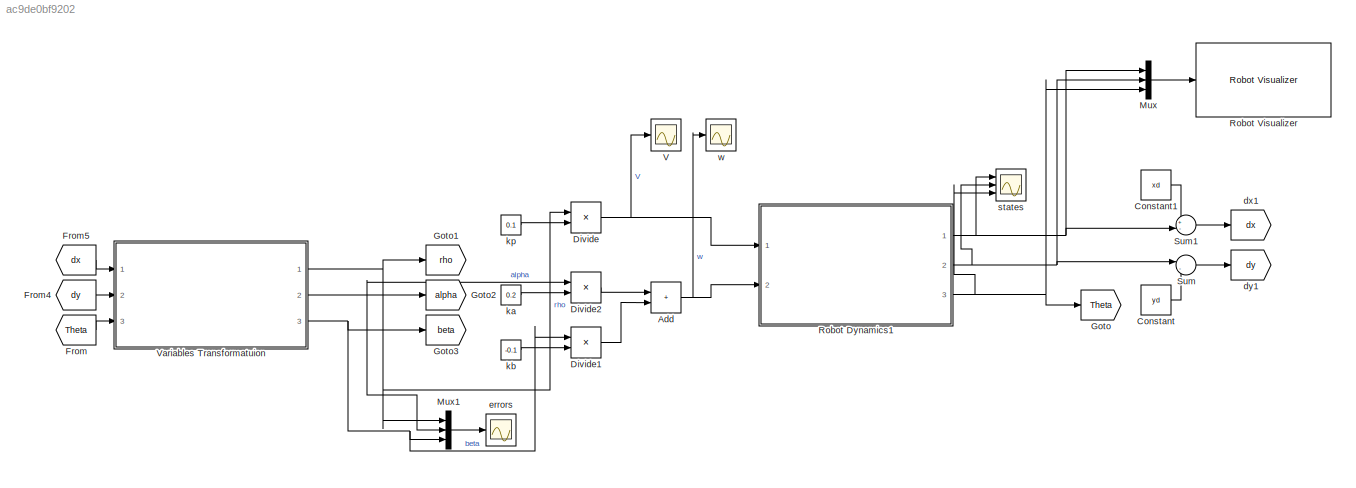
MODEL slx_ac9de0bf9202
KIND model
CONFIG AbsTol = auto
CONFIG EnableMultiTasking = off
CONFIG FixedStep = auto
CONFIG MaxStep = auto
CONFIG MinStep = auto
CONFIG RelTol = 1e-3
CONFIG SampleTimeConstraint = Unconstrained
CONFIG SolverName = VariableStepAuto
CONFIG StartTime = 0.0
CONFIG StopTime = 100
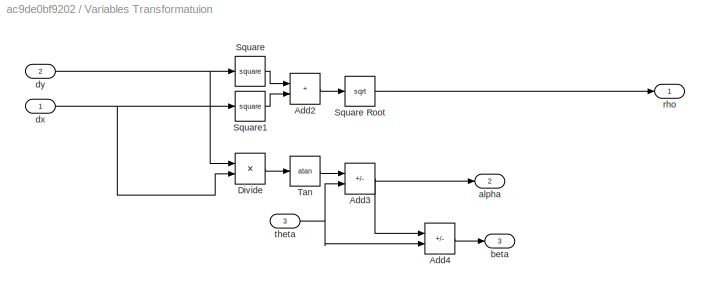
BLOCK [SubSystem]  Variables Transformatuion
  Ports = [3, 3]
  RequestExecContextInheritance = off
BLOCK [Sum]  Variables Transformatuion/Add2
  IconShape = rectangular
  Ports = [2, 1]
BLOCK [Sum]  Variables Transformatuion/Add3
  IconShape = rectangular
  Inputs = +-
  Ports = [2, 1]
BLOCK [Sum]  Variables Transformatuion/Add4
  IconShape = rectangular
  Inputs = --
  Ports = [2, 1]
BLOCK [Product]  Variables Transformatuion/Divide
  Inputs = */
  Ports = [2, 1]
BLOCK [Math]  Variables Transformatuion/Square
  Operator = square
  Ports = [1, 1]
BLOCK [Sqrt]  Variables Transformatuion/Square Root
BLOCK [Math]  Variables Transformatuion/Square1
  Operator = square
  Ports = [1, 1]
BLOCK [Trigonometry]  Variables Transformatuion/Tan
  Operator = atan
  Ports = [1, 1]
BLOCK [Outport]  Variables Transformatuion/alpha
  Port = 2
BLOCK [Outport]  Variables Transformatuion/beta
  Port = 3
BLOCK [Inport]  Variables Transformatuion/dx
BLOCK [Inport]  Variables Transformatuion/dy
  Port = 2
BLOCK [Outport]  Variables Transformatuion/rho
BLOCK [Inport]  Variables Transformatuion/theta
  Port = 3
BLOCK [Sum] Add
  IconShape = rectangular
  Ports = [2, 1]
BLOCK [Constant] Constant
  Value = yd
BLOCK [Constant] Constant1
  Value = xd
BLOCK [Product] Divide
  Inputs = **
  Ports = [2, 1]
BLOCK [Product] Divide1
  Inputs = **
  Ports = [2, 1]
BLOCK [Product] Divide2
  Inputs = **
  Ports = [2, 1]
BLOCK [From] From
  GotoTag = Theta
BLOCK [From] From4
  GotoTag = dy
BLOCK [From] From5
  GotoTag = dx
BLOCK [Goto] Goto
  GotoTag = Theta
BLOCK [Goto] Goto1
  GotoTag = rho
BLOCK [Goto] Goto2
  GotoTag = alpha
BLOCK [Goto] Goto3
  GotoTag = beta
BLOCK [Mux] Mux
  DisplayOption = bar
  Inputs = 3
  Ports = [3, 1]
BLOCK [Mux] Mux1
  DisplayOption = bar
  Inputs = 3
  Ports = [3, 1]
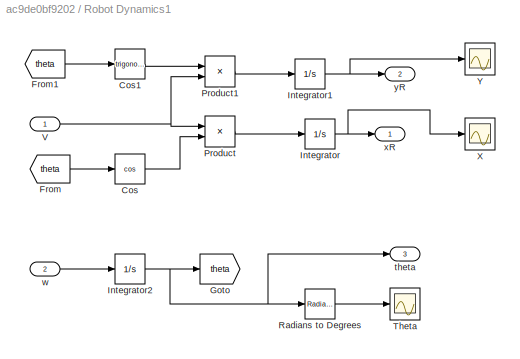
BLOCK [SubSystem] Robot Dynamics1
  Ports = [2, 3]
  RequestExecContextInheritance = off
BLOCK [Trigonometry] Robot Dynamics1/Cos
  Operator = cos
  Ports = [1, 1]
BLOCK [Trigonometry] Robot Dynamics1/Cos1
  Ports = [1, 1]
BLOCK [From] Robot Dynamics1/From
  GotoTag = theta
BLOCK [From] Robot Dynamics1/From1
  GotoTag = theta
BLOCK [Goto] Robot Dynamics1/Goto
  GotoTag = theta
BLOCK [Integrator] Robot Dynamics1/Integrator
  InitialCondition = x0
  Ports = [1, 1]
BLOCK [Integrator] Robot Dynamics1/Integrator1
  InitialCondition = y0
  Ports = [1, 1]
BLOCK [Integrator] Robot Dynamics1/Integrator2
  InitialCondition = theta0
  Ports = [1, 1]
BLOCK [Product] Robot Dynamics1/Product
  Ports = [2, 1]
BLOCK [Product] Robot Dynamics1/Product1
  Ports = [2, 1]
BLOCK [Reference] Robot Dynamics1/Radians to Degrees  REF=simulink_extras/Transformations/Radians
to Degrees
  Ports = [1, 1]
  SourceBlock = simulink_extras/Transformations/Radians\nto Degrees
  SourceProductBaseCode = SL
  SourceType = RadiansToDegrees
BLOCK [Scope] Robot Dynamics1/Theta
  Floating = off
  NumInputPorts = 1
  Ports = [1]
  ScopeSpecificationString = Simulink.scopes.TimeScopeBlockCfg('CurrentConfiguration', extmgr.ConfigurationSet(extmgr.Configuration('Core','General UI',true),extmgr.Configuration('Core','Source UI',true),extmgr.Configuration('Sources','WiredSimulink',true,'DataLoggingVariableName','ScopeData1'),extmgr.Configuration('Visuals','Time Domain',true,'SerializedDisplays',{struct('MinYLimReal','-143.23945','MaxYLimReal','1289.15504',...<+1547ch>
BLOCK [Inport] Robot Dynamics1/V
BLOCK [Scope] Robot Dynamics1/X
  Floating = off
  NumInputPorts = 1
  Ports = [1]
  ScopeSpecificationString = Simulink.scopes.TimeScopeBlockCfg('CurrentConfiguration', extmgr.ConfigurationSet(extmgr.Configuration('Core','General UI',true),extmgr.Configuration('Core','Source UI',true),extmgr.Configuration('Sources','WiredSimulink',true,'DataLoggingVariableName','ScopeData2'),extmgr.Configuration('Visuals','Time Domain',true,'SerializedDisplays',{struct('MinYLimReal','-3.12449','MaxYLimReal','3.12046','YLab...<+1427ch>
BLOCK [Scope] Robot Dynamics1/Y
  Floating = off
  NumInputPorts = 1
  Ports = [1]
  ScopeSpecificationString = Simulink.scopes.TimeScopeBlockCfg('CurrentConfiguration', extmgr.ConfigurationSet(extmgr.Configuration('Core','General UI',true),extmgr.Configuration('Core','Source UI',true),extmgr.Configuration('Sources','WiredSimulink',true),extmgr.Configuration('Visuals','Time Domain',true,'SerializedDisplays',{struct('MinYLimReal','-0.62488','MaxYLimReal','5.62393','YLabelReal','','MinYLimMag','0.00000','MaxY...<+1364ch>
BLOCK [Outport] Robot Dynamics1/theta
  Port = 3
BLOCK [Inport] Robot Dynamics1/w
  Port = 2
BLOCK [Outport] Robot Dynamics1/xR
BLOCK [Outport] Robot Dynamics1/yR
  Port = 2
BLOCK [Reference] Robot Visualizer  REF=mobileRoboticsLib/Environments/Robot Visualizer
  Ports = [1]
  SourceBlock = mobileRoboticsLib/Environments/Robot Visualizer
  SourceProductName = Mobile Robotics Simulation Toolbox
  SourceType = Visualizer2D
BLOCK [Sum] Sum
  Inputs = |-+
  Ports = [2, 1]
BLOCK [Sum] Sum1
  Inputs = +-|
  Ports = [2, 1]
BLOCK [Scope] V
  Floating = off
  NumInputPorts = 1
  Ports = [1]
  ScopeSpecificationString = Simulink.scopes.TimeScopeBlockCfg('CurrentConfiguration', extmgr.ConfigurationSet(extmgr.Configuration('Core','General UI',true),extmgr.Configuration('Core','Source UI',true),extmgr.Configuration('Sources','WiredSimulink',true,'DataLoggingVariableName','ScopeData1'),extmgr.Configuration('Visuals','Time Domain',true,'SerializedDisplays',{struct('MinYLimReal','-0.27938','MaxYLimReal','2.51556','YLab...<+1416ch>
BLOCK [Goto] dx1
  GotoTag = dx
BLOCK [Goto] dy1
  GotoTag = dy
BLOCK [Scope] errors
  Floating = off
  NumInputPorts = 1
  Ports = [1]
  ScopeSpecificationString = Simulink.scopes.TimeScopeBlockCfg('CurrentConfiguration', extmgr.ConfigurationSet(extmgr.Configuration('Core','General UI',true,'FigureColor',[1 1 1]),extmgr.Configuration('Core','Source UI',true),extmgr.Configuration('Sources','WiredSimulink',true,'DataLoggingVariableName','ScopeData3'),extmgr.Configuration('Visuals','Time Domain',true,'SerializedDisplays',{struct('MinYLimReal','-2.33565','MaxYLi...<+1716ch>
BLOCK [Constant] ka
  Value = 0.2
BLOCK [Constant] kb
  Value = -0.1
BLOCK [Constant] kp
  Value = 0.1
BLOCK [Scope] states
  Floating = off
  NumInputPorts = 3
  Ports = [3]
  ScopeSpecificationString = Simulink.scopes.TimeScopeBlockCfg('CurrentConfiguration', extmgr.ConfigurationSet(extmgr.Configuration('Core','General UI',true),extmgr.Configuration('Core','Source UI',true),extmgr.Configuration('Sources','WiredSimulink',true,'DataLoggingVariableName','ScopeData4'),extmgr.Configuration('Visuals','Time Domain',true,'SerializedDisplays',{struct('MinYLimReal','-2.62674','MaxYLimReal','22.51285','YLa...<+1486ch>
BLOCK [Scope] w
  Floating = off
  NumInputPorts = 1
  Ports = [1]
  ScopeSpecificationString = Simulink.scopes.TimeScopeBlockCfg('CurrentConfiguration', extmgr.ConfigurationSet(extmgr.Configuration('Core','General UI',true),extmgr.Configuration('Core','Source UI',true),extmgr.Configuration('Sources','WiredSimulink',true,'DataLoggingVariableName','ScopeData2'),extmgr.Configuration('Visuals','Time Domain',true,'SerializedDisplays',{struct('MinYLimReal','-0.05826','MaxYLimReal','0.14163','YLab...<+1418ch>
LINE  Variables Transformatuion/Add2:1 ->  Variables Transformatuion/Square Root:1
NET  Variables Transformatuion/Add3:1 ->  Variables Transformatuion/Add4:1,  Variables Transformatuion/alpha:1
LINE  Variables Transformatuion/Add4:1 ->  Variables Transformatuion/beta:1
LINE  Variables Transformatuion/Divide:1 ->  Variables Transformatuion/Tan:1
LINE  Variables Transformatuion/Square Root:1 ->  Variables Transformatuion/rho:1
LINE  Variables Transformatuion/Square1:1 ->  Variables Transformatuion/Add2:2
LINE  Variables Transformatuion/Square:1 ->  Variables Transformatuion/Add2:1
LINE  Variables Transformatuion/Tan:1 ->  Variables Transformatuion/Add3:1
NET  Variables Transformatuion/dx:1 ->  Variables Transformatuion/Divide:2,  Variables Transformatuion/Square1:1
NET  Variables Transformatuion/dy:1 ->  Variables Transformatuion/Divide:1,  Variables Transformatuion/Square:1
NET  Variables Transformatuion/theta:1 ->  Variables Transformatuion/Add3:2,  Variables Transformatuion/Add4:2
NET  Variables Transformatuion:1 -> Divide:1, Goto1:1, Mux1:1
NET  Variables Transformatuion:2 -> Divide2:1, Goto2:1, Mux1:2
NET  Variables Transformatuion:3 -> Divide1:1, Goto3:1, Mux1:3
NET Add:1 -> Robot Dynamics1:2, w:1
LINE Constant1:1 -> Sum1:1
LINE Constant:1 -> Sum:2
LINE Divide1:1 -> Add:2
LINE Divide2:1 -> Add:1
NET Divide:1 -> Robot Dynamics1:1, V:1
LINE From4:1 ->  Variables Transformatuion:2
LINE From5:1 ->  Variables Transformatuion:1
LINE From:1 ->  Variables Transformatuion:3
LINE Mux1:1 -> errors:1
LINE Mux:1 -> Robot Visualizer:1
LINE Robot Dynamics1/Cos1:1 -> Robot Dynamics1/Product1:1
LINE Robot Dynamics1/Cos:1 -> Robot Dynamics1/Product:2
LINE Robot Dynamics1/From1:1 -> Robot Dynamics1/Cos1:1
LINE Robot Dynamics1/From:1 -> Robot Dynamics1/Cos:1
NET Robot Dynamics1/Integrator1:1 -> Robot Dynamics1/Y:1, Robot Dynamics1/yR:1
NET Robot Dynamics1/Integrator2:1 -> Robot Dynamics1/Goto:1, Robot Dynamics1/Radians to Degrees:1, Robot Dynamics1/theta:1
NET Robot Dynamics1/Integrator:1 -> Robot Dynamics1/X:1, Robot Dynamics1/xR:1
LINE Robot Dynamics1/Product1:1 -> Robot Dynamics1/Integrator1:1
LINE Robot Dynamics1/Product:1 -> Robot Dynamics1/Integrator:1
LINE Robot Dynamics1/Radians to Degrees:1 -> Robot Dynamics1/Theta:1
NET Robot Dynamics1/V:1 -> Robot Dynamics1/Product1:2, Robot Dynamics1/Product:1
LINE Robot Dynamics1/w:1 -> Robot Dynamics1/Integrator2:1
NET Robot Dynamics1:1 -> Mux:1, Sum1:2, states:1
NET Robot Dynamics1:2 -> Mux:2, Sum:1, states:2
NET Robot Dynamics1:3 -> Goto:1, Mux:3, states:3
LINE Sum1:1 -> dx1:1
LINE Sum:1 -> dy1:1
LINE ka:1 -> Divide2:2
LINE kb:1 -> Divide1:2
LINE kp:1 -> Divide:2
note: NET lines group one-source signal fan-out (src -> all destinations, sorted); 1:1 wires keep LINE
